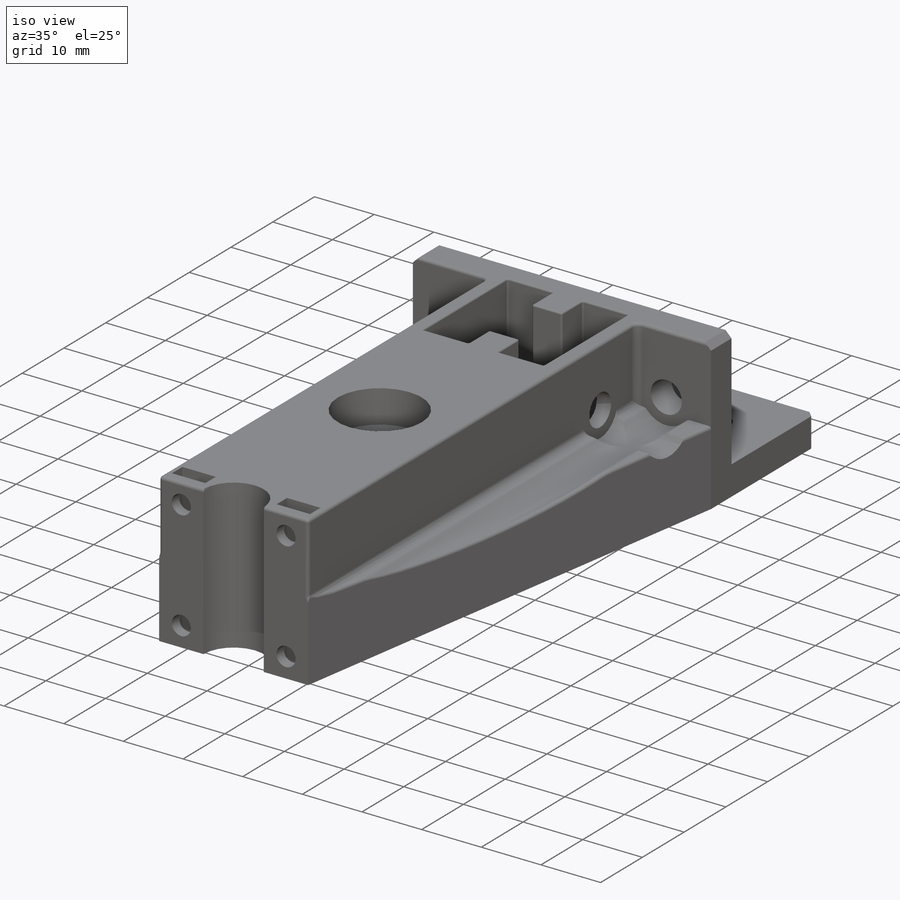
[diagram: iso view]
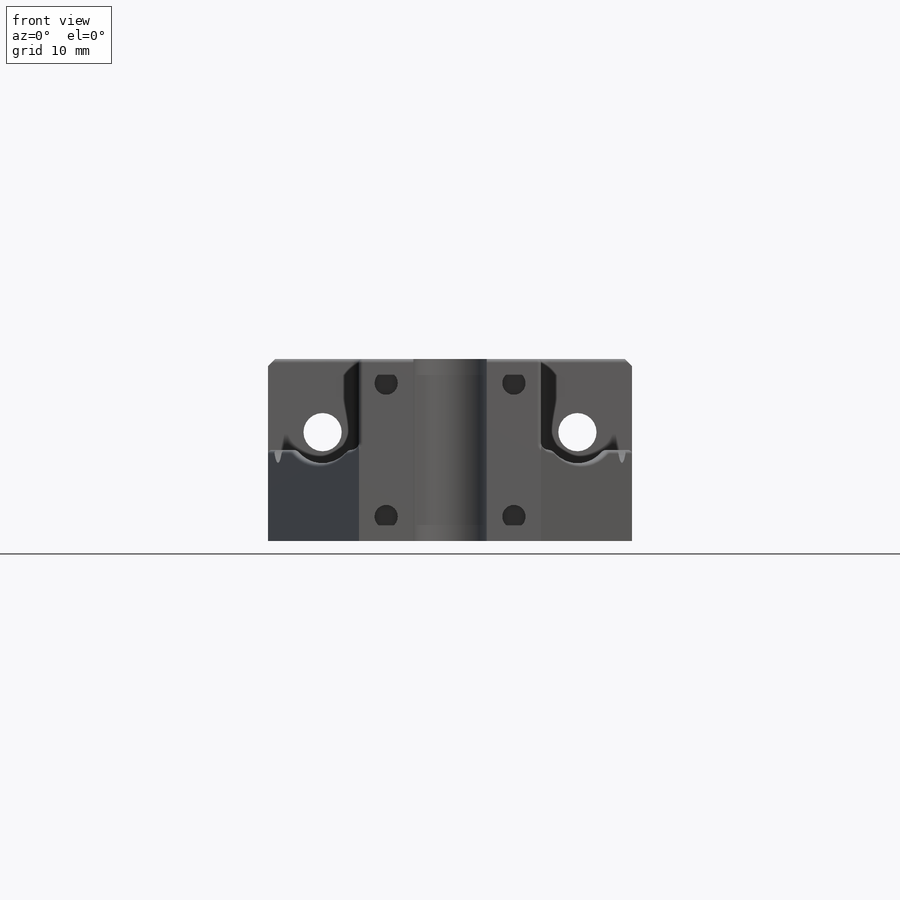
[diagram: front view]
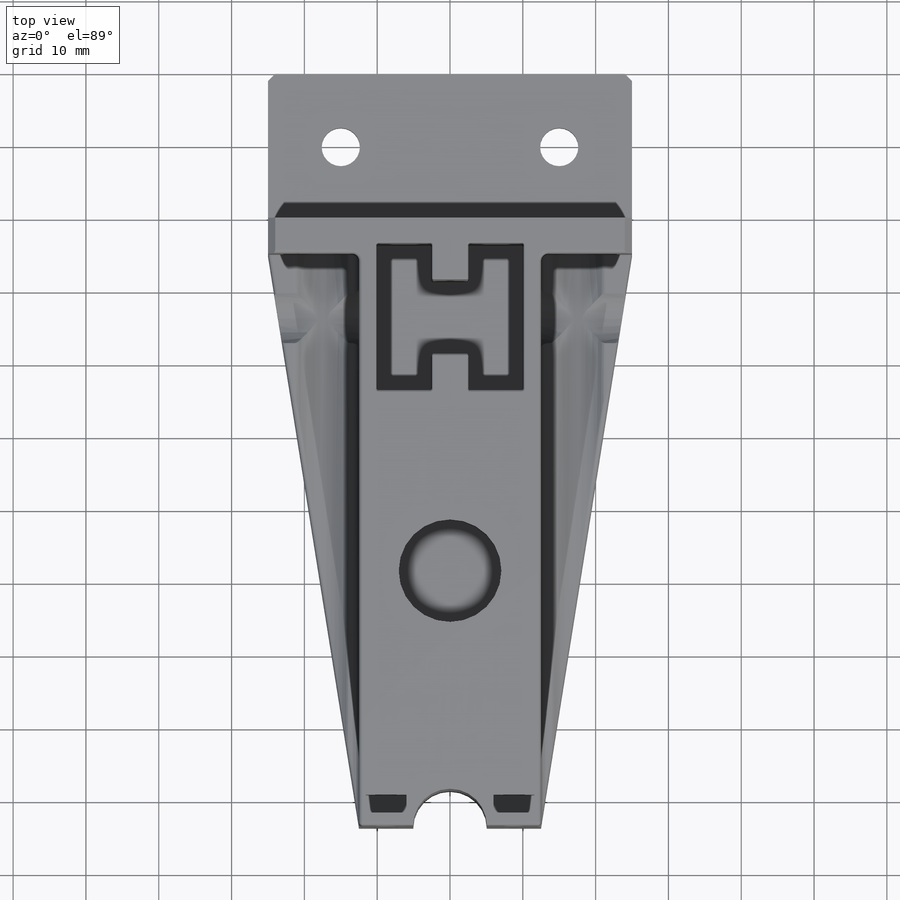
[diagram: top view]
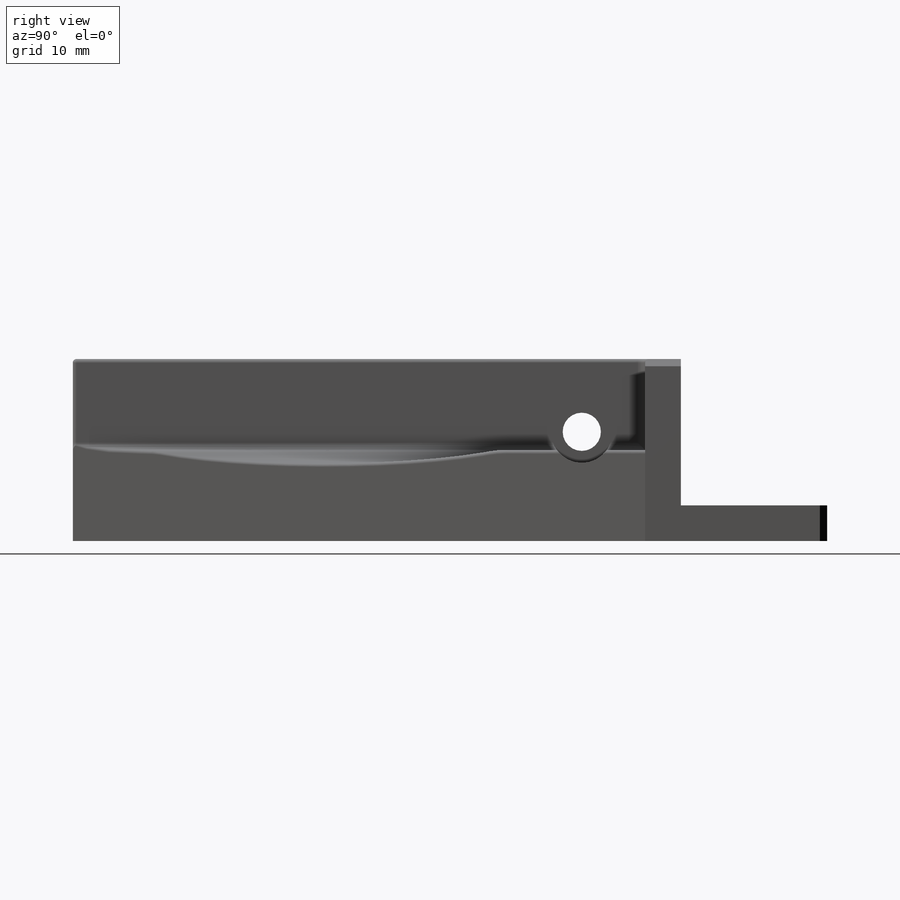
[diagram: right view]
SOLIDWORKS PART (.sldprt)
format: sldprt  version: not decoded by parser v0  size: 805,888 bytes
history: native  units: mm
features: sketch x17, cut_extrude x14, fillet x6, extrude x3, material x1, chamfer x1 (+13 scaffold rows collapsed)
feature tree (55):
  scaffold x13  (default folders/planes/origin — collapsed)
  material  "Material <not specified>"
  sketch  "Sketch1"  dims[D1=50.0mm D2=25.0mm]
  extrude  "Boss-Extrude1"  Depth=25mm
  sketch  "Sketch2"  dims[D1=20.1mm D2=20.1mm]
  cut_extrude  "Cut-Extrude1"  [1 undecoded]
  sketch  "Sketch4"  dims[D1=25.0mm]
  extrude  "Boss-Extrude3"  Depth=78.6mm
  sketch  "Sketch5"  dims[D1=3.5mm D2=20.2mm D3=20.2mm D4=10.1mm D5=5.0mm D6=2.5mm D7=5.0mm D8=2.5mm D9=5.0mm D10=3.5mm D11=7.6mm D12=5.0mm]
  cut_extrude  "Cut-Extrude3"  Depth=20mm
  sketch  "Sketch6"  dims[D2=14.1mm D1=24.8mm]
  cut_extrude  "Cut-Extrude4"  Depth=5.5mm
  sketch  "Sketch7"  dims[c1.D1=14.1mm c1.D2=10.1mm c2.D1=35.0mm c2.D2=6.4mm]
  cut_extrude  "Cut-Extrude5"  [1 undecoded]
  sketch  "Sketch8"
  extrude  "Boss-Extrude4"  [1 undecoded]
  sketch  "Sketch11"  dims[D3=3.2mm D4=3.2mm D1=5.0mm D2=5.0mm D5=3.75mm D6=3.95mm]
  cut_extrude  "Cut-Extrude6"  Depth=7.5mm
  sketch  "Sketch12"  dims[D1=3.0mm D2=3.0mm D3=5.6mm D4=5.6mm D5=2.5mm D6=2.5mm]
  cut_extrude  "Cut-Extrude7"  Depth=7mm
  sketch  "Sketch13"  dims[D1=3.0mm D2=3.0mm D3=5.6mm D4=5.6mm D5=2.5mm D6=2.5mm]
  cut_extrude  "Cut-Extrude8"  Depth=7mm
  sketch  "Sketch14"  dims[D1=5.25mm]
  cut_extrude  "Cut-Extrude9"  Depth=70mm
  sketch  "Sketch15"  dims[D1=8.55mm]
  cut_extrude  "Cut-Extrude11"  [1 undecoded]
  sketch  "Sketch16"  dims[D1=8.55mm]
  cut_extrude  "Cut-Extrude12"  [1 undecoded]
  sketch  "Sketch17"  dims[c1.D3=8.55mm c1.D1=10.05mm c1.D2=6.25mm c2.D3=12.5mm c2.D2=7.5mm]
  cut_extrude  "Cut-Extrude13"  [1 undecoded]
  sketch  "Sketch18"  dims[D3=5.25mm D1=7.5mm D2=10.05mm]
  cut_extrude  "Cut-Extrude14"  [1 undecoded]
  fillet  "Fillet2"  Radius=1mm
  fillet  "Fillet3"  Radius=1mm
  fillet  "Fillet4"  Radius=1mm
  fillet  "Fillet5"  Radius=0.5mm
  chamfer  "Chamfer1"  Distance=1mm Angle=45deg
  fillet  "Fillet6"  Radius=0.25mm
  sketch  "Sketch19"  dims[D3=5.25mm D1=10.0mm D2=10.05mm]
  cut_extrude  "Cut-Extrude15"  [1 undecoded]
  sketch  "Sketch20"  dims[D1=15.0mm D2=15.0mm]
  cut_extrude  "Cut-Extrude17"  Depth=2.5mm
  fillet  "Fillet7"  Radius=0.5mm
decode coverage: 32 of 41 modeling features carry decoded parameters
note: 8 parameter values undecoded
summary: no parameter record found for 8 features
note: suppression state not decoded; provenance and decode notes live in map.json
